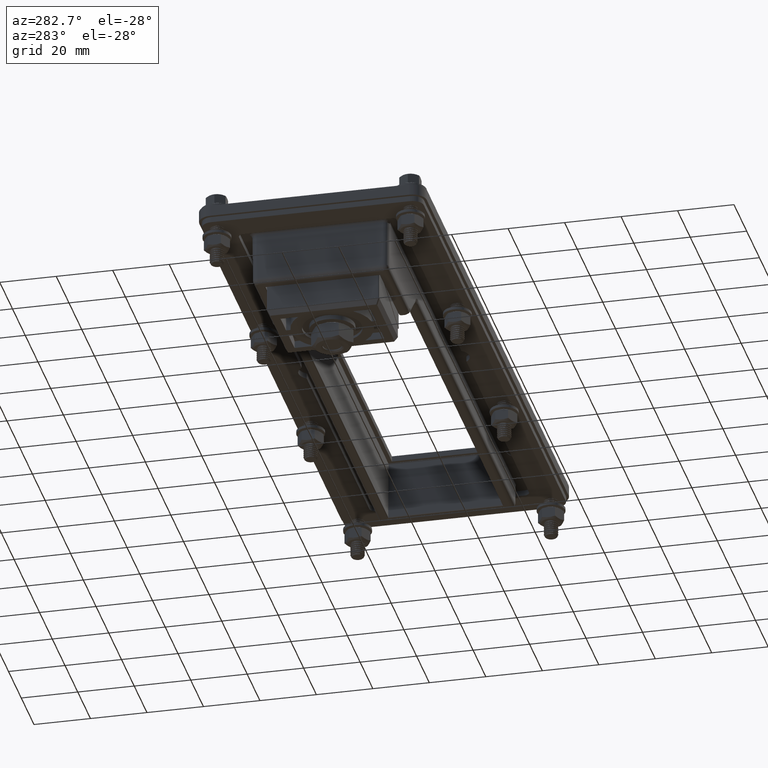
[diagram: clean part render]
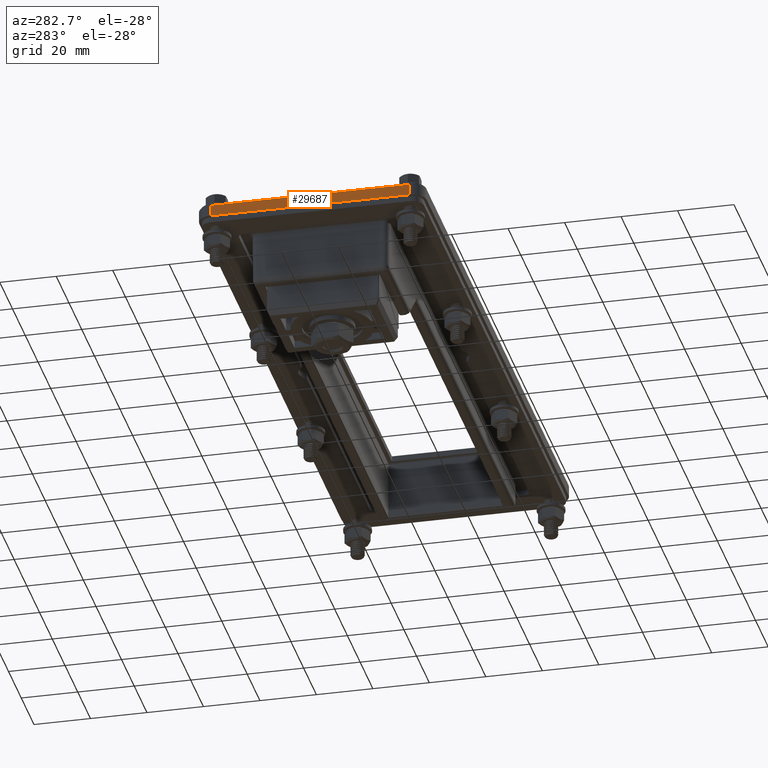
[diagram: same view with one face highlighted and labeled with its STEP entity id]
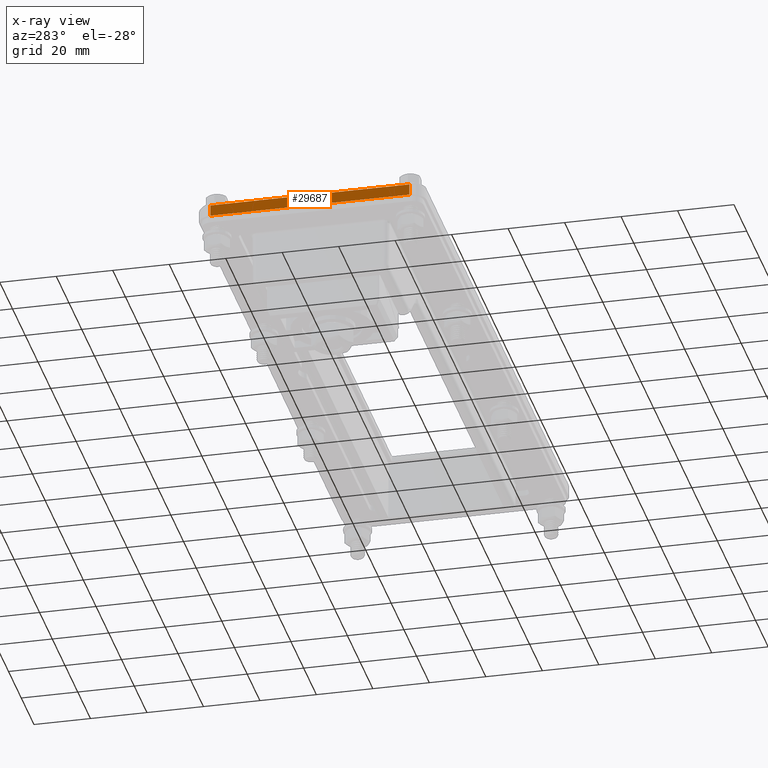
[diagram: x-ray of the same camera — body ghosted, the highlighted face saturated]
A machine part, auxiliary view. The second image highlights one B-rep face of the part: STEP entity #29687.
The next image is the same camera in x-ray: the body ghosted, the highlighted face saturated — about 0% of this face is hidden behind the body in this view.
In plain terms, the highlighted planar face has unit normal (-1, 0, 0).
Its self-contained STEP definition (entity closure, byte-faithful):
#8268=CARTESIAN_POINT('',(-116.49999999999997,35.250000000000121,9.500000000000002));
#8269=VERTEX_POINT('',#8268);
#8270=CARTESIAN_POINT('',(-116.49999999999997,-35.249999999999957,9.500000000000002));
#8271=VERTEX_POINT('',#8270);
#8272=CARTESIAN_POINT('',(-116.49999999999997,35.250000000000121,9.500000000000002));
#8273=DIRECTION('',(0.0,-1.0,0.0));
#8274=VECTOR('',#8273,70.500000000000085);
#8275=LINE('',#8272,#8274);
#8276=EDGE_CURVE('',#8269,#8271,#8275,.T.);
#14732=CARTESIAN_POINT('',(-116.49999999999997,-35.249999999999957,13.5));
#14733=VERTEX_POINT('',#14732);
#14734=CARTESIAN_POINT('',(-116.49999999999997,35.250000000000121,13.5));
#14735=VERTEX_POINT('',#14734);
#14736=CARTESIAN_POINT('',(-116.49999999999997,-35.249999999999964,13.5));
#14737=DIRECTION('',(0.0,1.0,0.0));
#14738=VECTOR('',#14737,70.500000000000085);
#14739=LINE('',#14736,#14738);
#14740=EDGE_CURVE('',#14733,#14735,#14739,.T.);
#29642=CARTESIAN_POINT('',(-116.49999999999997,-35.249999999999964,13.500000000000002));
#29643=DIRECTION('',(0.0,0.0,-1.0));
#29644=VECTOR('',#29643,4.0);
#29645=LINE('',#29642,#29644);
#29646=EDGE_CURVE('',#14733,#8271,#29645,.T.);
#29671=CARTESIAN_POINT('',(-116.49999999999997,-40.249999999999957,11.500000000000002));
#29672=DIRECTION('',(-1.0,0.0,0.0));
#29673=DIRECTION('',(0.0,0.0,1.0));
#29674=AXIS2_PLACEMENT_3D('',#29671,#29672,#29673);
#29675=PLANE('',#29674);
#29676=ORIENTED_EDGE('',*,*,#14740,.T.);
#29677=CARTESIAN_POINT('',(-116.49999999999997,35.250000000000121,9.500000000000002));
#29678=DIRECTION('',(0.0,0.0,1.0));
#29679=VECTOR('',#29678,4.0);
#29680=LINE('',#29677,#29679);
#29681=EDGE_CURVE('',#8269,#14735,#29680,.T.);
#29682=ORIENTED_EDGE('',*,*,#29681,.F.);
#29683=ORIENTED_EDGE('',*,*,#8276,.T.);
#29684=ORIENTED_EDGE('',*,*,#29646,.F.);
#29685=EDGE_LOOP('',(#29676,#29682,#29683,#29684));
#29686=FACE_OUTER_BOUND('',#29685,.T.);
#29687=ADVANCED_FACE('',(#29686),#29675,.T.);